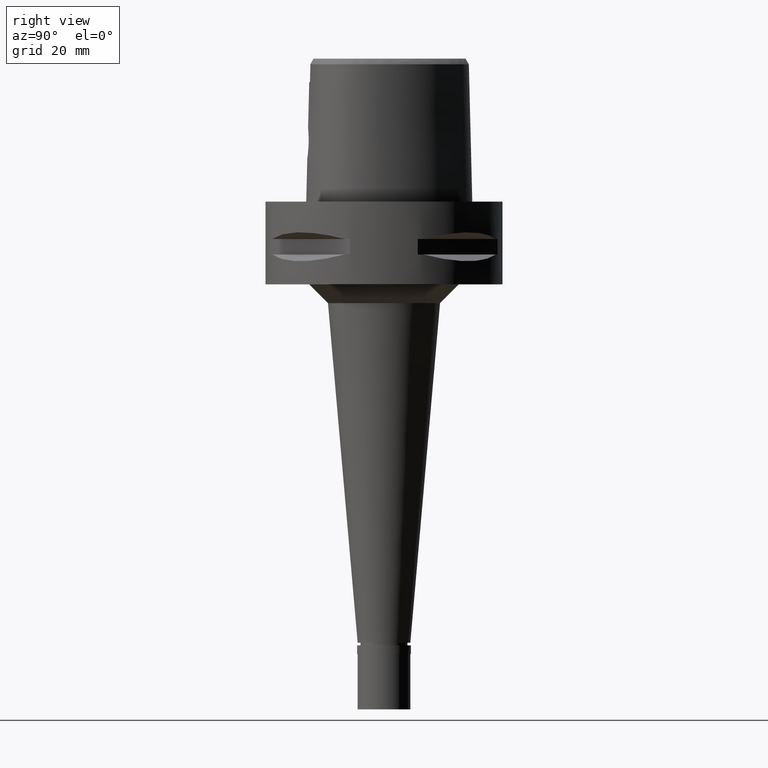
[diagram: clean part render]
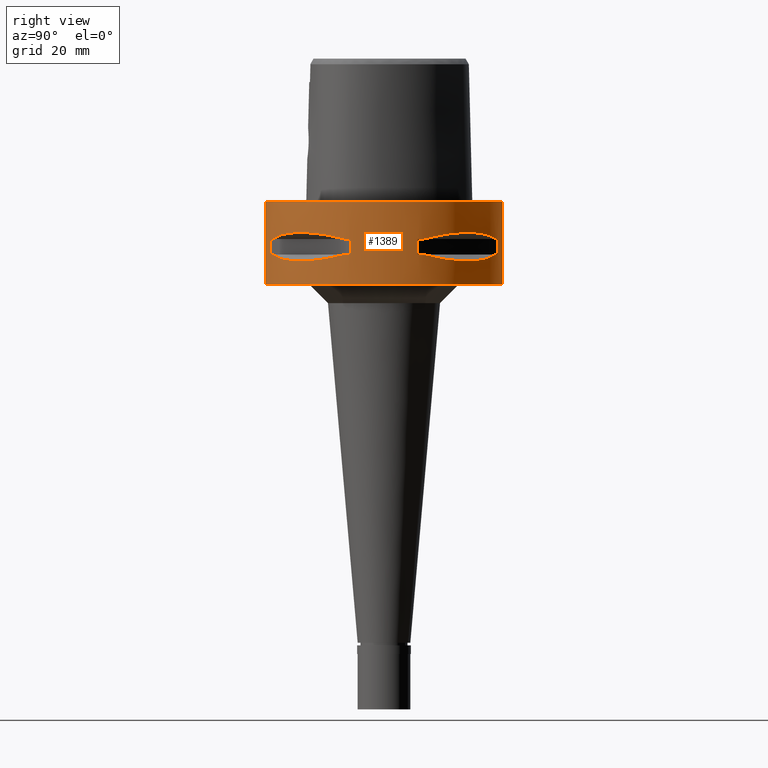
[diagram: same view with one face highlighted and labeled with its STEP entity id]
A machine part, right view. The second image highlights one B-rep face of the part: STEP entity #1389.
In plain terms, the highlighted cylindrical surface (partial cylindrical patch) has radius 31.5 mm, axis along (0, 0, -1).
Its self-contained STEP definition (entity closure, byte-faithful):
#27 = CIRCLE ( 'NONE', #656, 31.50000000000000711 ) ;
#145 = VERTEX_POINT ( 'NONE', #1741 ) ;
#199 = EDGE_CURVE ( 'NONE', #3522, #3274, #4681, .T. ) ;
#234 = CARTESIAN_POINT ( 'NONE',  ( 10.44775724750000023, -29.71690375017999841, -9.949999999998999201 ) ) ;
#261 = CARTESIAN_POINT ( 'NONE',  ( 20.64154884331368933, -23.90617837143877722, -8.160627831321765058 ) ) ;
#263 = AXIS2_PLACEMENT_3D ( 'NONE', #3818, #3095, #4183 ) ;
#271 = B_SPLINE_CURVE_WITH_KNOTS ( 'NONE', 3,
 ( #2821, #2455, #3188, #4698, #4325, #2053, #3570, #4817, #1066, #1012 ),
 .UNSPECIFIED., .F., .F.,
 ( 4, 2, 2, 2, 4 ),
 ( 0.0000000000000000000, 0.2500000000000000000, 0.5000000000000000000, 0.7500000000000000000, 1.000000000000000000 ),
 .UNSPECIFIED. ) ;
#282 = CARTESIAN_POINT ( 'NONE',  ( 26.54368690921627305, -16.96123479564985459, -15.41365572341332602 ) ) ;
#296 = EDGE_CURVE ( 'NONE', #2260, #917, #2254, .T. ) ;
#301 = CARTESIAN_POINT ( 'NONE',  ( 29.71690375017999841, -10.44775724750000023, -14.05000000000000071 ) ) ;
#302 = ORIENTED_EDGE ( 'NONE', *, *, #3147, .T. ) ;
#304 = CARTESIAN_POINT ( 'NONE',  ( 8.981198972017999438, -30.19251670572000279, -9.950000000000001066 ) ) ;
#316 = VECTOR ( 'NONE', #1949, 1000.000000000000000 ) ;
#329 = B_SPLINE_CURVE_WITH_KNOTS ( 'NONE', 3,
 ( #234, #1738, #4381, #2186, #261, #998, #2506, #1788, #1395, #3291 ),
 .UNSPECIFIED., .F., .F.,
 ( 4, 2, 2, 2, 4 ),
 ( 0.0000000000000000000, 0.2500000000000001110, 0.5000000000000000000, 0.7500000000000000000, 1.000000000000000000 ),
 .UNSPECIFIED. ) ;
#330 = CARTESIAN_POINT ( 'NONE',  ( 26.48642424310542509, -17.05047092244215889, -15.42670883407675042 ) ) ;
#344 = CARTESIAN_POINT ( 'NONE',  ( 16.98999780422198569, 26.52527364208497573, -15.41788098766329540 ) ) ;
#370 = CARTESIAN_POINT ( 'NONE',  ( 26.60451452154748253, 16.86571563436660526, -15.39949295786011874 ) ) ;
#410 = CARTESIAN_POINT ( 'NONE',  ( 30.19251670572000279, 8.981198972019999616, -9.950000000000001066 ) ) ;
#437 = VERTEX_POINT ( 'NONE', #1172 ) ;
#453 = CARTESIAN_POINT ( 'NONE',  ( 0.0000000000000000000, 1.304861164492000018E-14, -14.05000000000000071 ) ) ;
#481 = DIRECTION ( 'NONE',  ( 0.0000000000000000000, 0.0000000000000000000, 1.000000000000000000 ) ) ;
#498 = EDGE_CURVE ( 'NONE', #3582, #145, #2099, .T. ) ;
#555 = VECTOR ( 'NONE', #4405, 1000.000000000000000 ) ;
#629 = CARTESIAN_POINT ( 'NONE',  ( 28.91382665370159089, -12.73197616784618269, -14.65467361752943098 ) ) ;
#631 = DIRECTION ( 'NONE',  ( 0.0000000000000000000, 0.0000000000000000000, 1.000000000000000000 ) ) ;
#649 = EDGE_CURVE ( 'NONE', #943, #437, #1412, .T. ) ;
#656 = AXIS2_PLACEMENT_3D ( 'NONE', #3541, #481, #2408 ) ;
#681 = CARTESIAN_POINT ( 'NONE',  ( 18.86897208074864096, -25.32725744465734152, -15.69588095933306704 ) ) ;
#694 = ORIENTED_EDGE ( 'NONE', *, *, #3058, .T. ) ;
#715 = CARTESIAN_POINT ( 'NONE',  ( 20.18579225689579104, 24.23018836742823723, -15.78559396979392560 ) ) ;
#717 = CARTESIAN_POINT ( 'NONE',  ( 0.0000000000000000000, 1.304861164492000018E-14, -14.05000000000000071 ) ) ;
#725 = CIRCLE ( 'NONE', #2080, 31.50000000000000000 ) ;
#746 = CARTESIAN_POINT ( 'NONE',  ( 27.64634172018161706, 15.11986997310341962, -15.11207862403678170 ) ) ;
#782 = VERTEX_POINT ( 'NONE', #3808 ) ;
#799 = AXIS2_PLACEMENT_3D ( 'NONE', #717, #2240, #2269 ) ;
#805 = ORIENTED_EDGE ( 'NONE', *, *, #3613, .T. ) ;
#831 = EDGE_CURVE ( 'NONE', #943, #3851, #3830, .T. ) ;
#910 = VECTOR ( 'NONE', #1807, 1000.000000000000000 ) ;
#917 = VERTEX_POINT ( 'NONE', #2009 ) ;
#919 = ORIENTED_EDGE ( 'NONE', *, *, #3668, .T. ) ;
#943 = VERTEX_POINT ( 'NONE', #410 ) ;
#950 = ORIENTED_EDGE ( 'NONE', *, *, #3716, .T. ) ;
#952 = DIRECTION ( 'NONE',  ( 0.0000000000000000000, 0.0000000000000000000, -1.000000000000000000 ) ) ;
#998 = CARTESIAN_POINT ( 'NONE',  ( 23.90617837143874169, -20.64154884331374262, -8.160613588453554001 ) ) ;
#1007 = DIRECTION ( 'NONE',  ( 0.0000000000000000000, 0.0000000000000000000, -1.000000000000000000 ) ) ;
#1012 = CARTESIAN_POINT ( 'NONE',  ( 10.44775724750000023, 29.71690375017999841, -9.949999999998999201 ) ) ;
#1046 = CARTESIAN_POINT ( 'NONE',  ( 29.71690375017999841, 10.44775724750000023, -14.05000000000000071 ) ) ;
#1061 = CARTESIAN_POINT ( 'NONE',  ( 30.19251670572000279, -8.981198972019999616, -14.05000000000000071 ) ) ;
#1065 = AXIS2_PLACEMENT_3D ( 'NONE', #4230, #3786, #2653 ) ;
#1066 = CARTESIAN_POINT ( 'NONE',  ( 12.70097436187870343, 28.92472615203862318, -9.353533115194450076 ) ) ;
#1074 = CARTESIAN_POINT ( 'NONE',  ( 29.71690375017999841, 10.44775724750000023, -14.05000000000000071 ) ) ;
#1075 = CARTESIAN_POINT ( 'NONE',  ( 18.59229662067690114, 25.43927894889767316, -15.62866126334676942 ) ) ;
#1077 = DIRECTION ( 'NONE',  ( 0.0000000000000000000, -1.000000000000000000, 0.0000000000000000000 ) ) ;
#1088 = CARTESIAN_POINT ( 'NONE',  ( 13.25636937907020929, -28.62019653467701730, -14.74888225542203379 ) ) ;
#1104 = DIRECTION ( 'NONE',  ( 0.0000000000000000000, 1.000000000000000000, 0.0000000000000000000 ) ) ;
#1113 = LINE ( 'NONE', #4098, #3743 ) ;
#1146 = ORIENTED_EDGE ( 'NONE', *, *, #2729, .T. ) ;
#1170 = DIRECTION ( 'NONE',  ( 0.0000000000000000000, 0.0000000000000000000, -1.000000000000000000 ) ) ;
#1172 = CARTESIAN_POINT ( 'NONE',  ( 30.19251670572000279, 8.981198972017999438, -14.05000000000000071 ) ) ;
#1268 = CARTESIAN_POINT ( 'NONE',  ( 29.71690375017999841, -10.44775724750000023, -14.05000000000000071 ) ) ;
#1314 = CARTESIAN_POINT ( 'NONE',  ( 0.0000000000000000000, 1.304861164492000018E-14, -22.00000000000000000 ) ) ;
#1345 = VERTEX_POINT ( 'NONE', #1516 ) ;
#1376 = VERTEX_POINT ( 'NONE', #3422 ) ;
#1389 = ADVANCED_FACE ( 'NONE', ( #2557, #3747, #3795 ), #1814, .T. ) ;
#1395 = CARTESIAN_POINT ( 'NONE',  ( 28.92472615203863384, -12.70097436187862883, -9.353533115194450076 ) ) ;
#1408 = CARTESIAN_POINT ( 'NONE',  ( 15.11986997312254033, -27.64634172017490954, -15.11207862404184787 ) ) ;
#1412 = LINE ( 'NONE', #1786, #910 ) ;
#1418 = CARTESIAN_POINT ( 'NONE',  ( 10.44775724750000023, 29.71690375017999841, -14.05000000000000071 ) ) ;
#1431 = CARTESIAN_POINT ( 'NONE',  ( 24.23018836746479110, -20.18579225685548195, -15.78559396979238194 ) ) ;
#1443 = CARTESIAN_POINT ( 'NONE',  ( 21.46242677080035932, 23.08532645886616308, -15.83938991065496715 ) ) ;
#1447 = AXIS2_PLACEMENT_3D ( 'NONE', #453, #1481, #4718 ) ;
#1468 = CARTESIAN_POINT ( 'NONE',  ( 26.70521063584491017, 16.70616724745910275, -15.37546661817714444 ) ) ;
#1474 = DIRECTION ( 'NONE',  ( 0.2851174276831918153, 0.9584925938322735872, 0.0000000000000000000 ) ) ;
#1481 = DIRECTION ( 'NONE',  ( 0.0000000000000000000, 0.0000000000000000000, -1.000000000000000000 ) ) ;
#1491 = CARTESIAN_POINT ( 'NONE',  ( 26.84474411198702981, 16.48208282229089505, -15.34094883778014129 ) ) ;
#1496 = DIRECTION ( 'NONE',  ( 0.0000000000000000000, 0.0000000000000000000, -1.000000000000000000 ) ) ;
#1516 = CARTESIAN_POINT ( 'NONE',  ( 0.0000000000000000000, -31.50000000000000000, 0.0000000000000000000 ) ) ;
#1603 = AXIS2_PLACEMENT_3D ( 'NONE', #2330, #3783, #2620 ) ;
#1605 = CARTESIAN_POINT ( 'NONE',  ( 29.71690375017999841, 10.44775724750000023, -9.949999999998999201 ) ) ;
#1710 = DIRECTION ( 'NONE',  ( 0.0000000000000000000, -1.000000000000000000, 0.0000000000000000000 ) ) ;
#1724 = CARTESIAN_POINT ( 'NONE',  ( 29.71690375017999841, -10.44775724750000023, -9.949999999998999201 ) ) ;
#1738 = CARTESIAN_POINT ( 'NONE',  ( 12.70092055726417790, -28.92474506846259175, -9.353547358238612830 ) ) ;
#1741 = CARTESIAN_POINT ( 'NONE',  ( 8.981198972017999438, 30.19251670572000279, -9.950000000000001066 ) ) ;
#1755 = CARTESIAN_POINT ( 'NONE',  ( 16.48208282229687427, -26.84474411198493371, -15.34094883778172402 ) ) ;
#1786 = CARTESIAN_POINT ( 'NONE',  ( 30.19251670572000279, 8.981198972017999438, -9.950000000000001066 ) ) ;
#1788 = CARTESIAN_POINT ( 'NONE',  ( 27.88210502980697925, -14.84430321584896539, -8.906184731949558397 ) ) ;
#1804 = ORIENTED_EDGE ( 'NONE', *, *, #3322, .T. ) ;
#1807 = DIRECTION ( 'NONE',  ( 0.0000000000000000000, 0.0000000000000000000, -1.000000000000000000 ) ) ;
#1814 = CYLINDRICAL_SURFACE ( 'NONE', #4114, 31.50000000000000000 ) ;
#1816 = B_SPLINE_CURVE_WITH_KNOTS ( 'NONE', 3,
 ( #4071, #2202, #1088, #1408, #3308, #1755, #3366, #3707, #3637, #2869, #681, #2544, #2597, #1431, #3285, #4096, #2501, #2227, #330, #4868, #282, #4001, #629, #301 ),
 .UNSPECIFIED., .F., .F.,
 ( 4, 1, 1, 1, 1, 1, 2, 2, 2, 1, 1, 1, 1, 1, 2, 2, 4 ),
 ( 0.0000000000000000000, 0.1250000000000063005, 0.1875000000000094369, 0.2187500000000109357, 0.2343750000000116851, 0.2421875000000119627, 0.2460937500000119627, 0.2500000000000119349, 0.5000000000000025535, 0.6249999999999978906, 0.6874999999999955591, 0.7187499999999945599, 0.7343749999999941158, 0.7421874999999936717, 0.7460937499999935607, 0.7499999999999933387, 1.000000000000000000 ),
 .UNSPECIFIED. ) ;
#1818 = EDGE_CURVE ( 'NONE', #4121, #2664, #4008, .T. ) ;
#1869 = CARTESIAN_POINT ( 'NONE',  ( 16.96123479564913694, 26.54368690921650398, -15.41365572341313239 ) ) ;
#1875 = DIRECTION ( 'NONE',  ( 0.0000000000000000000, 0.0000000000000000000, -1.000000000000000000 ) ) ;
#1889 = CARTESIAN_POINT ( 'NONE',  ( 25.32725744468687168, 18.86897208071480136, -15.69588095933130845 ) ) ;
#1949 = DIRECTION ( 'NONE',  ( 0.0000000000000000000, 0.0000000000000000000, -1.000000000000000000 ) ) ;
#2009 = CARTESIAN_POINT ( 'NONE',  ( 10.44775724750000023, 29.71690375017999841, -14.05000000000000071 ) ) ;
#2053 = CARTESIAN_POINT ( 'NONE',  ( 20.64154884331372841, 23.90617837143877367, -8.160613588453552225 ) ) ;
#2063 = CARTESIAN_POINT ( 'NONE',  ( 0.0000000000000000000, 31.50000000000000000, 0.0000000000000000000 ) ) ;
#2080 = AXIS2_PLACEMENT_3D ( 'NONE', #1314, #4321, #1710 ) ;
#2099 = CIRCLE ( 'NONE', #263, 31.50000000000000711 ) ;
#2105 = CARTESIAN_POINT ( 'NONE',  ( 8.981198972017999438, -30.19251670572000279, -14.05000000000000071 ) ) ;
#2123 = EDGE_CURVE ( 'NONE', #1345, #782, #3048, .T. ) ;
#2153 = VERTEX_POINT ( 'NONE', #2632 ) ;
#2157 = CIRCLE ( 'NONE', #2708, 31.50000000000000000 ) ;
#2186 = CARTESIAN_POINT ( 'NONE',  ( 18.81455742157450572, -25.37277178172551473, -8.309746333145351826 ) ) ;
#2202 = CARTESIAN_POINT ( 'NONE',  ( 11.58970337496347902, -29.31542262584038028, -14.35229357167449216 ) ) ;
#2213 = CARTESIAN_POINT ( 'NONE',  ( 28.62019653468597724, 13.25636937904471147, -14.74888225541528186 ) ) ;
#2216 = EDGE_LOOP ( 'NONE', ( #4845, #2381, #2798, #2284, #1146, #4469, #3046, #1804 ) ) ;
#2227 = CARTESIAN_POINT ( 'NONE',  ( 26.42800887047654967, -17.14106442934675911, -15.43984550238513620 ) ) ;
#2240 = DIRECTION ( 'NONE',  ( 0.0000000000000000000, 0.0000000000000000000, -1.000000000000000000 ) ) ;
#2254 = B_SPLINE_CURVE_WITH_KNOTS ( 'NONE', 3,
 ( #1046, #4805, #2213, #746, #2999, #1491, #1468, #4466, #370, #2555, #1889, #4510, #1443, #715, #1075, #2950, #3745, #3676, #4537, #344, #1869, #2975, #4684, #1418 ),
 .UNSPECIFIED., .F., .F.,
 ( 4, 1, 1, 1, 1, 1, 2, 2, 2, 1, 1, 1, 1, 1, 2, 2, 4 ),
 ( 0.0000000000000000000, 0.1250000000000023870, 0.1875000000000036915, 0.2187500000000045797, 0.2343750000000049960, 0.2421875000000053013, 0.2460937500000055789, 0.2500000000000058842, 0.5000000000000076605, 0.6250000000000083267, 0.6875000000000086597, 0.7187500000000088818, 0.7343750000000086597, 0.7421875000000086597, 0.7460937500000084377, 0.7500000000000083267, 1.000000000000000000 ),
 .UNSPECIFIED. ) ;
#2260 = VERTEX_POINT ( 'NONE', #1074 ) ;
#2269 = DIRECTION ( 'NONE',  ( 0.3316748332540863653, -0.9433937698468619626, 0.0000000000000000000 ) ) ;
#2284 = ORIENTED_EDGE ( 'NONE', *, *, #296, .F. ) ;
#2318 = CIRCLE ( 'NONE', #4359, 31.50000000000000711 ) ;
#2326 = EDGE_LOOP ( 'NONE', ( #4002, #3068, #950, #2978 ) ) ;
#2328 = VECTOR ( 'NONE', #952, 1000.000000000000000 ) ;
#2330 = CARTESIAN_POINT ( 'NONE',  ( 0.0000000000000000000, 1.304861164492000018E-14, -9.950000000000001066 ) ) ;
#2381 = ORIENTED_EDGE ( 'NONE', *, *, #4488, .F. ) ;
#2408 = DIRECTION ( 'NONE',  ( 0.9433937698468619626, -0.3316748332540863653, 0.0000000000000000000 ) ) ;
#2441 = ORIENTED_EDGE ( 'NONE', *, *, #1818, .F. ) ;
#2455 = CARTESIAN_POINT ( 'NONE',  ( 28.92474506846264148, 12.70092055726410152, -9.353547358238609277 ) ) ;
#2471 = AXIS2_PLACEMENT_3D ( 'NONE', #4862, #1496, #1474 ) ;
#2493 = EDGE_CURVE ( 'NONE', #3496, #3782, #4820, .T. ) ;
#2501 = CARTESIAN_POINT ( 'NONE',  ( 26.29071741523927841, -17.35163608579630079, -15.46976201925489569 ) ) ;
#2506 = CARTESIAN_POINT ( 'NONE',  ( 25.37272068394596047, -18.81462633037690679, -8.309724968579113025 ) ) ;
#2518 = DIRECTION ( 'NONE',  ( 0.9433937698468619626, 0.3316748332540863653, 0.0000000000000000000 ) ) ;
#2544 = CARTESIAN_POINT ( 'NONE',  ( 20.65093790434436372, -23.89673728056386182, -15.83935804901581079 ) ) ;
#2547 = CARTESIAN_POINT ( 'NONE',  ( 30.19251670572000279, -8.981198972017999438, -9.950000000000001066 ) ) ;
#2555 = CARTESIAN_POINT ( 'NONE',  ( 26.58330558444425762, 16.89910283486581832, -15.40446471307235754 ) ) ;
#2557 = FACE_OUTER_BOUND ( 'NONE', #2326, .T. ) ;
#2565 = VERTEX_POINT ( 'NONE', #3480 ) ;
#2597 = CARTESIAN_POINT ( 'NONE',  ( 23.08532645888704238, -21.46242677077732353, -15.83938991065408963 ) ) ;
#2620 = DIRECTION ( 'NONE',  ( 0.2851174276831918153, -0.9584925938322735872, 0.0000000000000000000 ) ) ;
#2632 = CARTESIAN_POINT ( 'NONE',  ( 8.981198972019999616, 30.19251670572000279, -14.05000000000000071 ) ) ;
#2651 = CARTESIAN_POINT ( 'NONE',  ( 10.44775724750000023, 29.71690375017999841, -9.949999999998999201 ) ) ;
#2653 = DIRECTION ( 'NONE',  ( 0.9584925938322735872, 0.2851174276831918153, 0.0000000000000000000 ) ) ;
#2664 = VERTEX_POINT ( 'NONE', #2547 ) ;
#2708 = AXIS2_PLACEMENT_3D ( 'NONE', #4113, #1875, #1104 ) ;
#2729 = EDGE_CURVE ( 'NONE', #2260, #437, #2318, .T. ) ;
#2798 = ORIENTED_EDGE ( 'NONE', *, *, #2908, .T. ) ;
#2821 = CARTESIAN_POINT ( 'NONE',  ( 29.71690375017999841, 10.44775724750000023, -9.949999999998999201 ) ) ;
#2866 = CIRCLE ( 'NONE', #1447, 31.50000000000001776 ) ;
#2869 = CARTESIAN_POINT ( 'NONE',  ( 16.89910283486529252, -26.58330558444471947, -15.40446471307232912 ) ) ;
#2889 = CARTESIAN_POINT ( 'NONE',  ( 0.0000000000000000000, 1.304861164492000018E-14, -14.05000000000000071 ) ) ;
#2908 = EDGE_CURVE ( 'NONE', #2153, #917, #4759, .T. ) ;
#2924 = CARTESIAN_POINT ( 'NONE',  ( 0.0000000000000000000, 1.304861164492000018E-14, 6.550000000000000711 ) ) ;
#2925 = EDGE_CURVE ( 'NONE', #3522, #1345, #2157, .T. ) ;
#2940 = VERTEX_POINT ( 'NONE', #1724 ) ;
#2950 = CARTESIAN_POINT ( 'NONE',  ( 17.76952662673489769, 26.01217882833579154, -15.52665221626253356 ) ) ;
#2975 = CARTESIAN_POINT ( 'NONE',  ( 14.89252659058207939, 27.86285265926221300, -15.10765629752054195 ) ) ;
#2978 = ORIENTED_EDGE ( 'NONE', *, *, #199, .F. ) ;
#2999 = CARTESIAN_POINT ( 'NONE',  ( 27.11872488589154528, 16.03138450078616728, -15.26880420107737990 ) ) ;
#3046 = ORIENTED_EDGE ( 'NONE', *, *, #831, .T. ) ;
#3048 = LINE ( 'NONE', #4558, #3175 ) ;
#3058 = EDGE_CURVE ( 'NONE', #2565, #3782, #4119, .T. ) ;
#3068 = ORIENTED_EDGE ( 'NONE', *, *, #2123, .T. ) ;
#3088 = CARTESIAN_POINT ( 'NONE',  ( 0.0000000000000000000, 31.50000000000000000, -22.00000000000000000 ) ) ;
#3095 = DIRECTION ( 'NONE',  ( 0.0000000000000000000, 0.0000000000000000000, 1.000000000000000000 ) ) ;
#3147 = EDGE_CURVE ( 'NONE', #1376, #2940, #329, .T. ) ;
#3175 = VECTOR ( 'NONE', #1170, 1000.000000000000000 ) ;
#3188 = CARTESIAN_POINT ( 'NONE',  ( 27.88214534473929973, 14.84422749192711422, -8.906206096515800752 ) ) ;
#3265 = CARTESIAN_POINT ( 'NONE',  ( 30.19251670572000279, -8.981198972017999438, -14.05000000000000071 ) ) ;
#3274 = VERTEX_POINT ( 'NONE', #3088 ) ;
#3285 = CARTESIAN_POINT ( 'NONE',  ( 25.43927894892507169, -18.59229662064666755, -15.62866126334561123 ) ) ;
#3291 = CARTESIAN_POINT ( 'NONE',  ( 29.71690375017999841, -10.44775724750000023, -9.949999999998999201 ) ) ;
#3308 = CARTESIAN_POINT ( 'NONE',  ( 16.03138450079733346, -27.11872488588761954, -15.26880420108033398 ) ) ;
#3320 = DIRECTION ( 'NONE',  ( 0.0000000000000000000, 0.0000000000000000000, -1.000000000000000000 ) ) ;
#3322 = EDGE_CURVE ( 'NONE', #3851, #3582, #271, .T. ) ;
#3366 = CARTESIAN_POINT ( 'NONE',  ( 16.70616724746217940, -26.70521063584381949, -15.37546661817795624 ) ) ;
#3389 = EDGE_CURVE ( 'NONE', #2565, #4206, #1816, .T. ) ;
#3422 = CARTESIAN_POINT ( 'NONE',  ( 10.44775724750000023, -29.71690375017999841, -9.949999999998999201 ) ) ;
#3459 = EDGE_LOOP ( 'NONE', ( #4758, #2441, #919, #3537, #694, #3553, #805, #302 ) ) ;
#3480 = CARTESIAN_POINT ( 'NONE',  ( 10.44775724750000023, -29.71690375017999841, -14.05000000000000071 ) ) ;
#3496 = VERTEX_POINT ( 'NONE', #4172 ) ;
#3522 = VERTEX_POINT ( 'NONE', #4889 ) ;
#3537 = ORIENTED_EDGE ( 'NONE', *, *, #3389, .F. ) ;
#3541 = CARTESIAN_POINT ( 'NONE',  ( 0.0000000000000000000, 1.304861164492000018E-14, -9.950000000000001066 ) ) ;
#3553 = ORIENTED_EDGE ( 'NONE', *, *, #2493, .F. ) ;
#3570 = CARTESIAN_POINT ( 'NONE',  ( 18.81462633037691745, 25.37272068394597824, -8.309724968579113025 ) ) ;
#3582 = VERTEX_POINT ( 'NONE', #2651 ) ;
#3613 = EDGE_CURVE ( 'NONE', #3496, #1376, #4291, .T. ) ;
#3637 = CARTESIAN_POINT ( 'NONE',  ( 16.86571563436751475, -26.60451452154716989, -15.39949295786035854 ) ) ;
#3668 = EDGE_CURVE ( 'NONE', #4121, #4206, #2866, .T. ) ;
#3676 = CARTESIAN_POINT ( 'NONE',  ( 17.14106442935163699, 26.42800887047211944, -15.43984550238531916 ) ) ;
#3707 = CARTESIAN_POINT ( 'NONE',  ( 16.80193241490779599, -26.64486562695696037, -15.38992683735752642 ) ) ;
#3716 = EDGE_CURVE ( 'NONE', #782, #3274, #725, .T. ) ;
#3743 = VECTOR ( 'NONE', #631, 1000.000000000000000 ) ;
#3745 = CARTESIAN_POINT ( 'NONE',  ( 17.35163608580574035, 26.29071741523071282, -15.46976201925525274 ) ) ;
#3747 = FACE_BOUND ( 'NONE', #2216, .T. ) ;
#3782 = VERTEX_POINT ( 'NONE', #2105 ) ;
#3783 = DIRECTION ( 'NONE',  ( 0.0000000000000000000, 0.0000000000000000000, 1.000000000000000000 ) ) ;
#3786 = DIRECTION ( 'NONE',  ( 0.0000000000000000000, 0.0000000000000000000, 1.000000000000000000 ) ) ;
#3795 = FACE_BOUND ( 'NONE', #3459, .T. ) ;
#3808 = CARTESIAN_POINT ( 'NONE',  ( 0.0000000000000000000, -31.50000000000000000, -22.00000000000000000 ) ) ;
#3818 = CARTESIAN_POINT ( 'NONE',  ( 0.0000000000000000000, 1.304861164492000018E-14, -9.950000000000001066 ) ) ;
#3830 = CIRCLE ( 'NONE', #1065, 31.50000000000001776 ) ;
#3851 = VERTEX_POINT ( 'NONE', #1605 ) ;
#4001 = CARTESIAN_POINT ( 'NONE',  ( 27.86285265927817889, -14.89252659053665795, -15.10765629750851602 ) ) ;
#4002 = ORIENTED_EDGE ( 'NONE', *, *, #2925, .T. ) ;
#4008 = LINE ( 'NONE', #3265, #555 ) ;
#4071 = CARTESIAN_POINT ( 'NONE',  ( 10.44775724750000023, -29.71690375017999841, -14.05000000000000071 ) ) ;
#4096 = CARTESIAN_POINT ( 'NONE',  ( 26.01217882835178585, -17.76952662671725847, -15.52665221626185676 ) ) ;
#4098 = CARTESIAN_POINT ( 'NONE',  ( 8.981198972017999438, 30.19251670572000279, -14.05000000000000071 ) ) ;
#4113 = CARTESIAN_POINT ( 'NONE',  ( 0.0000000000000000000, 1.304861164492000018E-14, 0.0000000000000000000 ) ) ;
#4114 = AXIS2_PLACEMENT_3D ( 'NONE', #2924, #3320, #1077 ) ;
#4119 = CIRCLE ( 'NONE', #799, 31.50000000000000711 ) ;
#4121 = VERTEX_POINT ( 'NONE', #1061 ) ;
#4172 = CARTESIAN_POINT ( 'NONE',  ( 8.981198972019999616, -30.19251670572000279, -9.950000000000001066 ) ) ;
#4183 = DIRECTION ( 'NONE',  ( 0.3316748332540863653, 0.9433937698468619626, 0.0000000000000000000 ) ) ;
#4206 = VERTEX_POINT ( 'NONE', #1268 ) ;
#4230 = CARTESIAN_POINT ( 'NONE',  ( 0.0000000000000000000, 1.304861164492000018E-14, -9.950000000000001066 ) ) ;
#4291 = CIRCLE ( 'NONE', #1603, 31.50000000000001776 ) ;
#4321 = DIRECTION ( 'NONE',  ( 0.0000000000000000000, 0.0000000000000000000, 1.000000000000000000 ) ) ;
#4325 = CARTESIAN_POINT ( 'NONE',  ( 23.90617837143869906, 20.64154884331381012, -8.160627831321766834 ) ) ;
#4359 = AXIS2_PLACEMENT_3D ( 'NONE', #2889, #1007, #2518 ) ;
#4381 = CARTESIAN_POINT ( 'NONE',  ( 14.84422749192712132, -27.88214534473927131, -8.906206096515798976 ) ) ;
#4405 = DIRECTION ( 'NONE',  ( 0.0000000000000000000, 0.0000000000000000000, 1.000000000000000000 ) ) ;
#4466 = CARTESIAN_POINT ( 'NONE',  ( 26.64486562695759275, 16.80193241490600542, -15.38992683735705391 ) ) ;
#4469 = ORIENTED_EDGE ( 'NONE', *, *, #649, .F. ) ;
#4488 = EDGE_CURVE ( 'NONE', #2153, #145, #1113, .T. ) ;
#4510 = CARTESIAN_POINT ( 'NONE',  ( 23.89673728051777957, 20.65093790438612587, -15.83935804901405042 ) ) ;
#4537 = CARTESIAN_POINT ( 'NONE',  ( 17.05047092244498685, 26.48642424310287780, -15.42670883407686411 ) ) ;
#4558 = CARTESIAN_POINT ( 'NONE',  ( 0.0000000000000000000, -31.50000000000000000, 0.0000000000000000000 ) ) ;
#4681 = LINE ( 'NONE', #2063, #2328 ) ;
#4684 = CARTESIAN_POINT ( 'NONE',  ( 12.73197616789159525, 28.91382665368562144, -14.65467361754145514 ) ) ;
#4698 = CARTESIAN_POINT ( 'NONE',  ( 25.37277178172547920, 18.81455742157458744, -8.309746333145351826 ) ) ;
#4718 = DIRECTION ( 'NONE',  ( 0.9584925938322735872, -0.2851174276831918153, 0.0000000000000000000 ) ) ;
#4758 = ORIENTED_EDGE ( 'NONE', *, *, #4811, .T. ) ;
#4759 = CIRCLE ( 'NONE', #2471, 31.50000000000001776 ) ;
#4805 = CARTESIAN_POINT ( 'NONE',  ( 29.31542262584548553, 11.58970337494890224, -14.35229357167063213 ) ) ;
#4811 = EDGE_CURVE ( 'NONE', #2940, #2664, #27, .T. ) ;
#4817 = CARTESIAN_POINT ( 'NONE',  ( 14.84430321584901691, 27.88210502980696859, -8.906184731949558397 ) ) ;
#4820 = LINE ( 'NONE', #304, #316 ) ;
#4845 = ORIENTED_EDGE ( 'NONE', *, *, #498, .T. ) ;
#4862 = CARTESIAN_POINT ( 'NONE',  ( 0.0000000000000000000, 1.304861164492000018E-14, -14.05000000000000071 ) ) ;
#4868 = CARTESIAN_POINT ( 'NONE',  ( 26.52527364208627958, -16.98999780422056816, -15.41788098766324744 ) ) ;
#4889 = CARTESIAN_POINT ( 'NONE',  ( 0.0000000000000000000, 31.50000000000000000, 0.0000000000000000000 ) ) ;